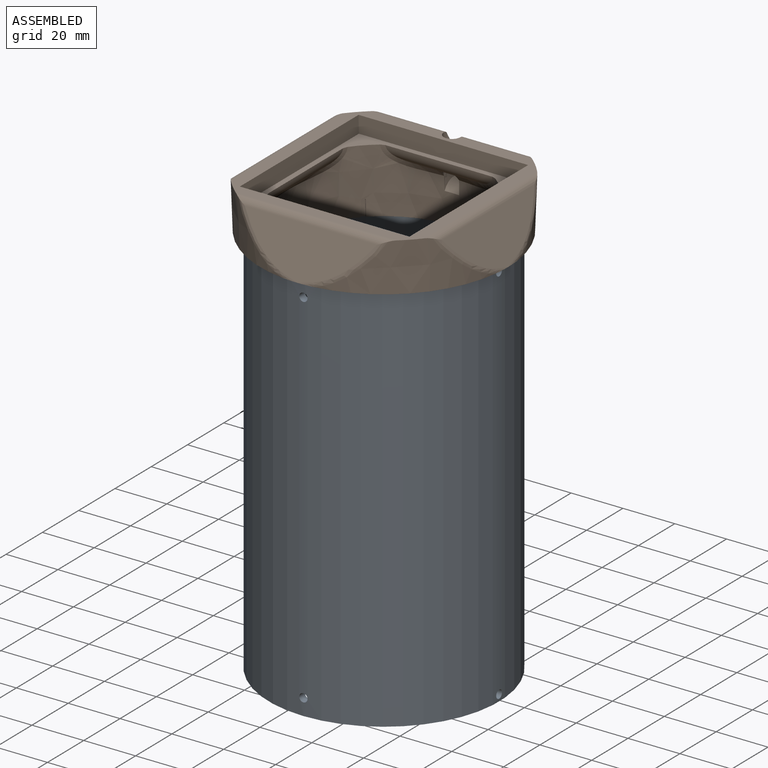
[diagram: assembled view]
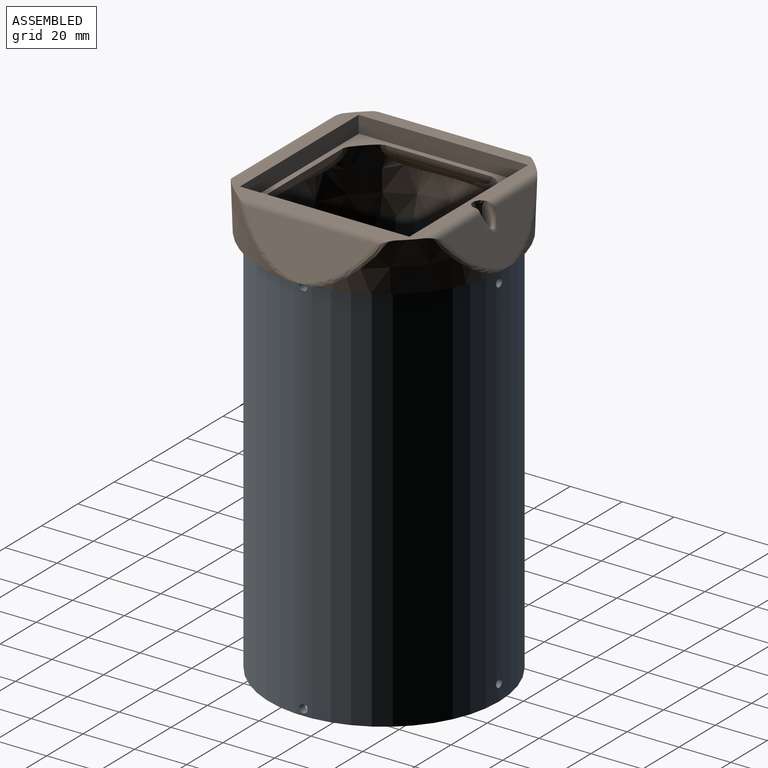
[diagram: assembled view, second angle]
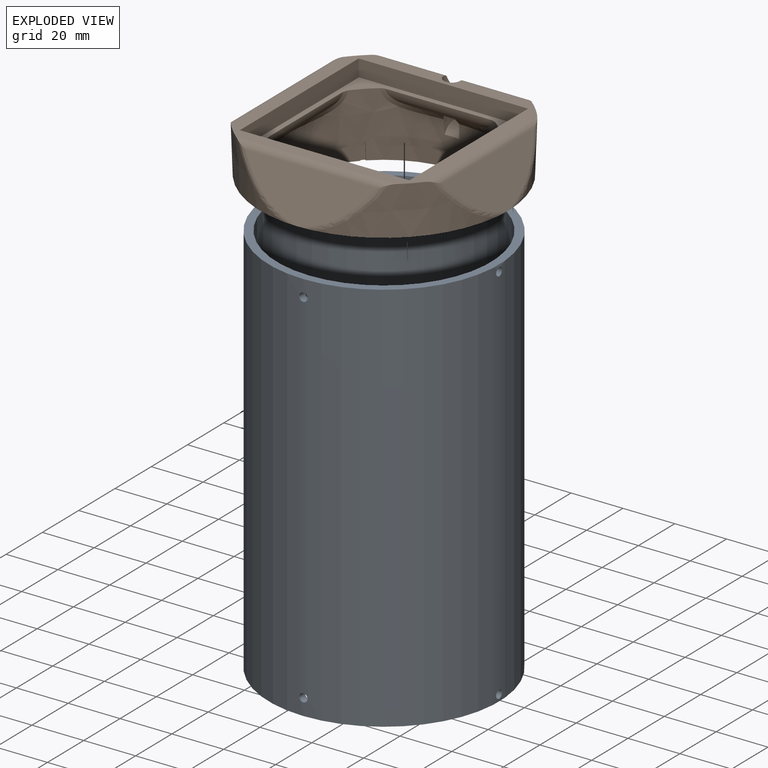
[diagram: exploded view]
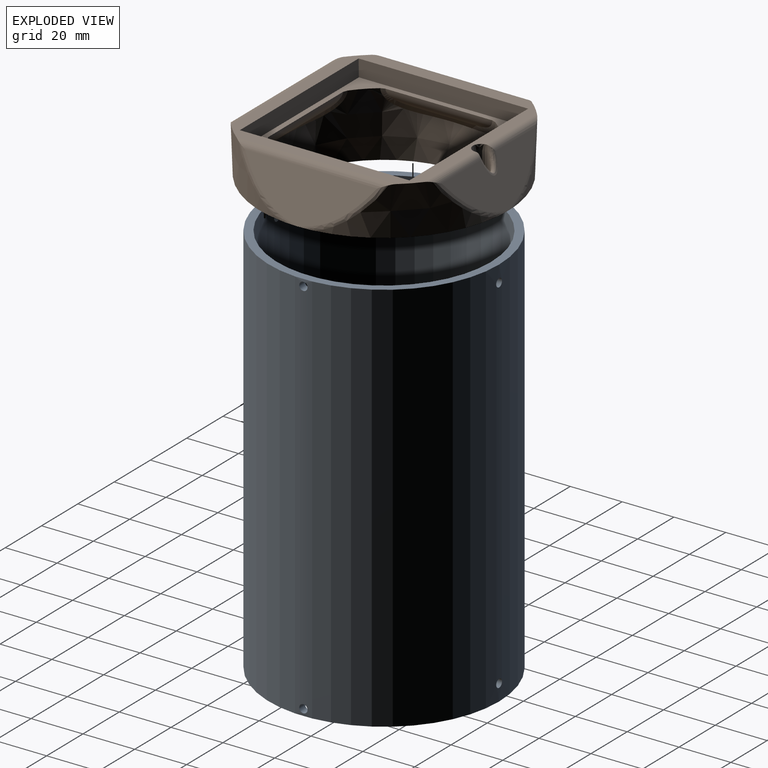
[diagram: exploded view, second angle]
ASSEMBLY  parts=2 mates=2
PART A: 12 faces, bbox 88.9x88.9x152.4 mm
  f0: cylinder r=44.45mm len=152.4mm, axis (0,0,-1), area 42499.6mm2, adj f2,f3,f4,f5,f6,f7,f8,f9
  f1: cylinder r=41.27mm len=152.4mm, axis (0,0,-1), area 39459.4mm2, adj f2,f3,f4,f5,f6,f7,f8,f9
  f2: plane 88.9x88.9mm, normal (0,0,1), area 855.1mm2, adj f0,f1
  f3: plane 88.9x88.9mm, normal (0,0,-1), area 855.1mm2, adj f0,f1
  f4: cylinder r=1.59mm len=3.21mm, axis (-1,0,0), area 31.7mm2, adj f0,f1
  f5: cylinder r=1.59mm len=3.21mm, axis (1,0,0), area 31.7mm2, adj f0,f1
  f6: cylinder r=1.59mm len=3.21mm, axis (-1,0,0), area 31.7mm2, adj f0,f1
  f7: cylinder r=1.59mm len=3.21mm, axis (1,0,0), area 31.7mm2, adj f0,f1
  f8: cylinder r=1.59mm len=3.21mm, axis (0,1,0), area 31.7mm2, adj f0,f1
  f9: cylinder r=1.59mm len=3.21mm, axis (0,-1,0), area 31.7mm2, adj f0,f1
  f10: cylinder r=1.59mm len=3.21mm, axis (0,1,0), area 31.7mm2, adj f0,f1
  f11: cylinder r=1.59mm len=3.21mm, axis (0,-1,0), area 31.7mm2, adj f0,f1
PART B: 59 faces, bbox 124.2x124.2x66.7 mm
  f0: plane 81.66x81.66mm, normal (0,0,-1), area 721.3mm2, adj f8,f9,f52,f53,f54,f55,f56,f58
  f1: plane 74.61x74.61mm, normal (0,0,1), area 1195.3mm2, adj f2,f3,f4,f5,f6,f11,f12,f13
  f2: cone r=47.85mm half-angle=2deg, axis (0,0,1), area 612.5mm2, adj f1,f10,f39,f40,f44,f45
  f3: cone r=47.85mm half-angle=2deg, axis (0,0,1), area 612.5mm2, adj f1,f10,f34,f35,f40,f41
  f4: cone r=47.85mm half-angle=2deg, axis (0,0,1), area 612.5mm2, adj f1,f10,f30,f32,f47,f48
  f5: cone r=47.85mm half-angle=2deg, axis (0,0,1), area 612.5mm2, adj f1,f10,f31,f32,f35,f36
  f6: cone r=3.17mm half-angle=1deg, axis (0,0,1), area 240.4mm2, adj f1,f7,f9,f18,f23,f45,f48,f49
  f7: bspline ~21.08x9.03mm, area 58.7mm2, adj f6,f9,f15,f18
  f8: cone r=41.27mm half-angle=2deg, axis (0,0,1), area 3277.9mm2, adj f0,f10
  f9: cone r=37.46mm half-angle=2deg, axis (0,0,-1), area 4544.1mm2, adj f0,f6,f7,f15,f20,f21,f22,f23
  f10: plane 96.44x96.44mm, normal (0,0,-1), area 1840mm2, adj f2,f3,f4,f5,f8,f28,f29,f33
  f11: plane 65.44x6.35mm, normal (-1,0,0.05), area 414mm2, adj f1,f12,f14,f15
  f12: plane 65.44x6.35mm, normal (0,1,0.05), area 414mm2, adj f1,f11,f13,f15
  f13: plane 65.44x6.35mm, normal (1,0,0.05), area 414mm2, adj f1,f12,f14,f15
  f14: plane 65.44x6.35mm, normal (0,-1,0.05), area 414mm2, adj f1,f11,f13,f15
  f15: plane 92.71x92.71mm, normal (0,0,1), area 682.6mm2, adj f7,f9,f11,f12,f13,f14,f16,f17
  f16: cylinder r=6.99mm len=41.3mm, axis (-1,0,0), area 0mm2, adj f15,f21
  f17: cylinder r=6.99mm len=41.3mm, axis (0,1,0), area 0mm2, adj f15,f20
  f18: cylinder r=6.99mm len=41.3mm, axis (1,0,0), area 270.3mm2, adj f6,f7,f15,f23
  f19: cylinder r=6.99mm len=41.3mm, axis (0,-1,0), area 0mm2, adj f15,f22
  f20: bspline ~44.48x8.77mm, area 133.3mm2, adj f9,f15,f17
  f21: bspline ~44.48x8.77mm, area 133.3mm2, adj f9,f15,f16
  f22: bspline ~44.48x8.77mm, area 133.3mm2, adj f9,f15,f19
  f23: bspline ~21.79x10.21mm, area 58.7mm2, adj f6,f9,f15,f18
  f24: plane 51.14x17.17mm, normal (0,0.91,0.41), area 588.7mm2, adj f43,f44,f45,f46,f47,f48,f49
  f25: plane 51.14x17.17mm, normal (0,-0.91,0.41), area 628.4mm2, adj f33,f34,f35,f36,f37
  f26: plane 51.14x17.17mm, normal (0.91,0,0.41), area 628.4mm2, adj f28,f29,f30,f31,f32
  f27: plane 51.14x17.17mm, normal (-0.91,0,0.41), area 628.4mm2, adj f38,f39,f40,f41,f42
  f28: bspline ~8.95x2.13mm, area 2.9mm2, adj f10,f26,f30
  f29: bspline ~5.99x1.4mm, area 2.9mm2, adj f10,f26,f31
  f30: bspline ~31.13x26.7mm, area 56.8mm2, adj f4,f26,f28,f32
  f31: bspline ~31.13x26.7mm, area 56.8mm2, adj f5,f26,f29,f32
  f32: cylinder r=3.17mm len=62.03mm, axis (0,1,0), area 208mm2, adj f1,f4,f5,f26,f30,f31
  f33: bspline ~5.99x1.4mm, area 2.9mm2, adj f10,f25,f34
  f34: bspline ~31.13x26.7mm, area 56.8mm2, adj f3,f25,f33,f35
  f35: cylinder r=3.17mm len=62.03mm, axis (1,0,0), area 208mm2, adj f1,f3,f5,f25,f34,f36
  f36: bspline ~31.13x26.7mm, area 56.8mm2, adj f5,f25,f35,f37
  f37: bspline ~8.95x2.13mm, area 2.9mm2, adj f10,f25,f36
  f38: bspline ~8.95x2.13mm, area 2.9mm2, adj f10,f27,f39
  f39: bspline ~31.13x26.7mm, area 56.8mm2, adj f2,f27,f38,f40
  f40: cylinder r=3.17mm len=62.03mm, axis (0,-1,0), area 208mm2, adj f1,f2,f3,f27,f39,f41
  f41: bspline ~31.13x26.7mm, area 56.8mm2, adj f3,f27,f40,f42
  f42: bspline ~8.95x2.13mm, area 2.9mm2, adj f10,f27,f41
  f43: bspline ~8.95x2.13mm, area 2.9mm2, adj f10,f24,f44
  f44: bspline ~31.13x26.7mm, area 56.8mm2, adj f2,f24,f43,f45
  f45: cylinder r=3.17mm len=27.86mm, axis (-1,0,0), area 91mm2, adj f1,f2,f6,f24,f44,f49
  f46: bspline ~8.95x2.13mm, area 2.9mm2, adj f10,f24,f47
  f47: bspline ~31.13x26.7mm, area 56.8mm2, adj f4,f24,f46,f48
  f48: cylinder r=3.17mm len=27.86mm, axis (-1,0,0), area 91mm2, adj f1,f4,f6,f24,f47,f49
  f49: bspline ~9.71x8.91mm, area 46.6mm2, adj f6,f24,f45,f48
  f50: cone r=40.44mm half-angle=30deg, axis (0,0,1), area 25.9mm2, adj f6,f9
  f51: plane 1.5x1.5mm, normal (0,0,-1), area 0.9mm2, adj f9,f52,f53,f54
  f52: plane 6.35x0.6mm, normal (0.71,0.71,-0.02), area 3.6mm2, adj f0,f9,f51,f54
  f53: plane 6.35x0.6mm, normal (-0.71,-0.71,-0.02), area 3.6mm2, adj f0,f9,f51,f54
  f54: plane 6.35x1.21mm, normal (0.71,-0.71,-0.02), area 10.2mm2, adj f0,f51,f52,f53
  f55: plane 6.35x0.6mm, normal (-0.71,-0.71,-0.02), area 3.6mm2, adj f0,f9,f57,f58
  f56: plane 6.35x0.6mm, normal (0.71,0.71,-0.02), area 3.6mm2, adj f0,f9,f57,f58
  f57: plane 1.5x1.5mm, normal (0,0,-1), area 0.9mm2, adj f9,f55,f56,f58
  f58: plane 6.35x1.21mm, normal (-0.71,0.71,-0.02), area 10.2mm2, adj f0,f55,f56,f57
PLACE A t=(-29.58,33.47,-10.01)mm
PLACE B t=(-29.58,33.47,142.39)mm
MATE cylindrical B.f8 <-> A.f0  axis (0,0,-1) through (-29.58,33.47,129.69)mm
MATE fastened B.f2 <-> A.f0  axis (0,0,-1) through (-29.58,33.47,142.39)mm
